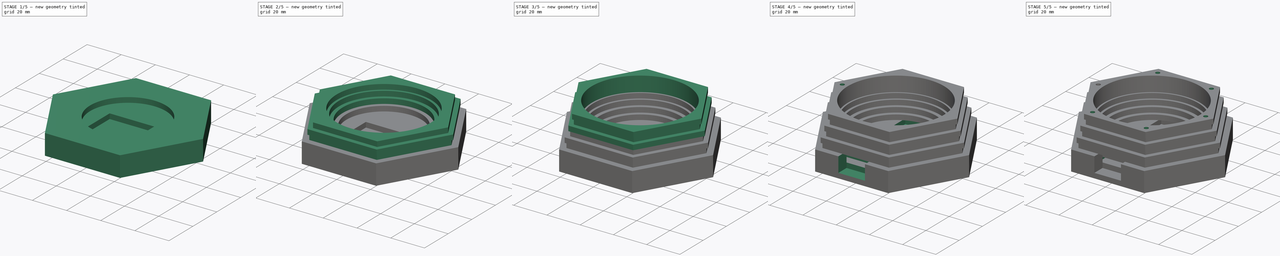
[diagram: build sequence overview — one tinted view per stage of 5, left to right]
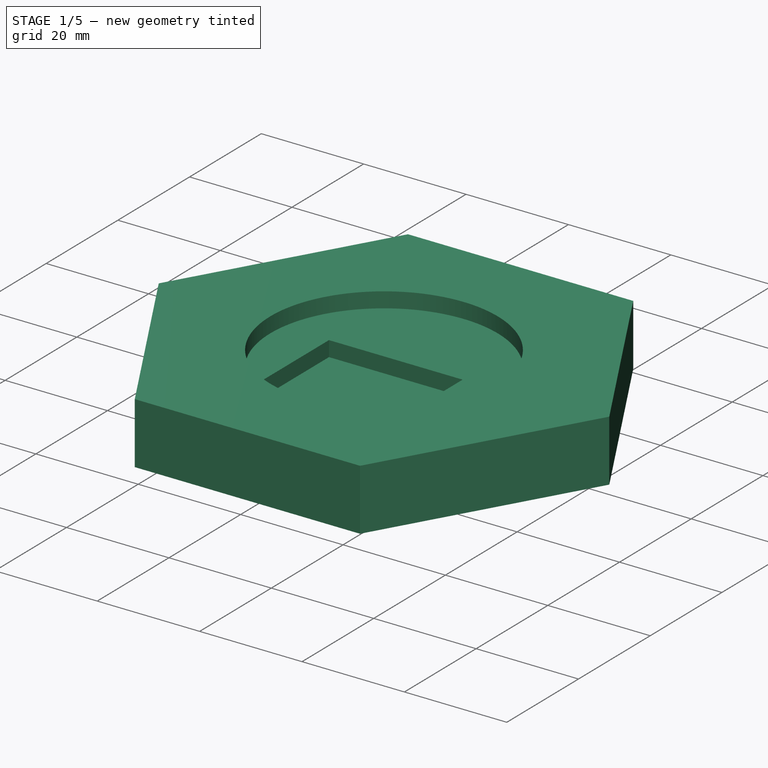
[diagram: stage 1 of 5 — iso view after this stage's code; geometry added in this stage tinted green]
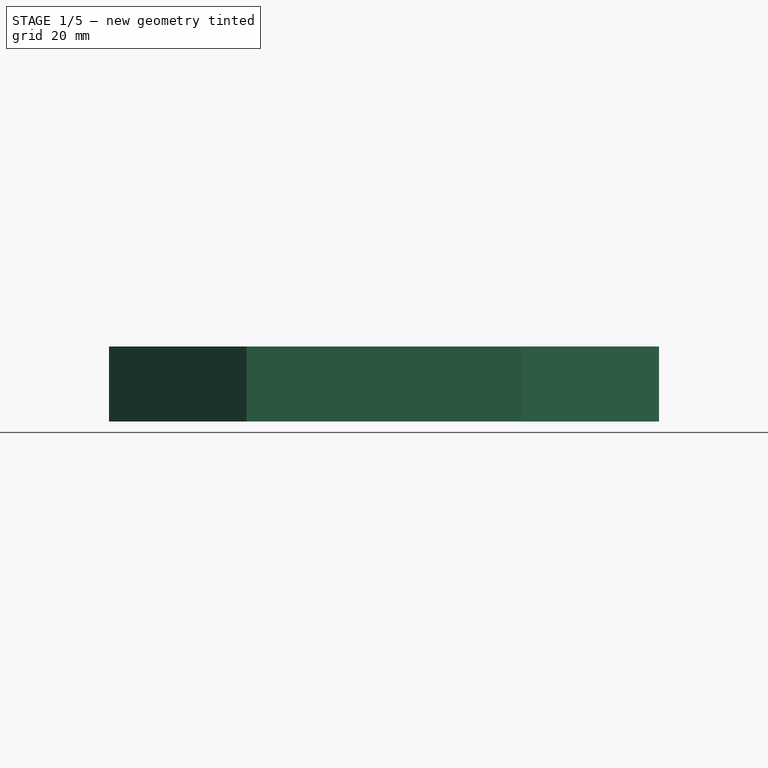
[diagram: stage 1 of 5 — front view after this stage's code; geometry added in this stage tinted green]
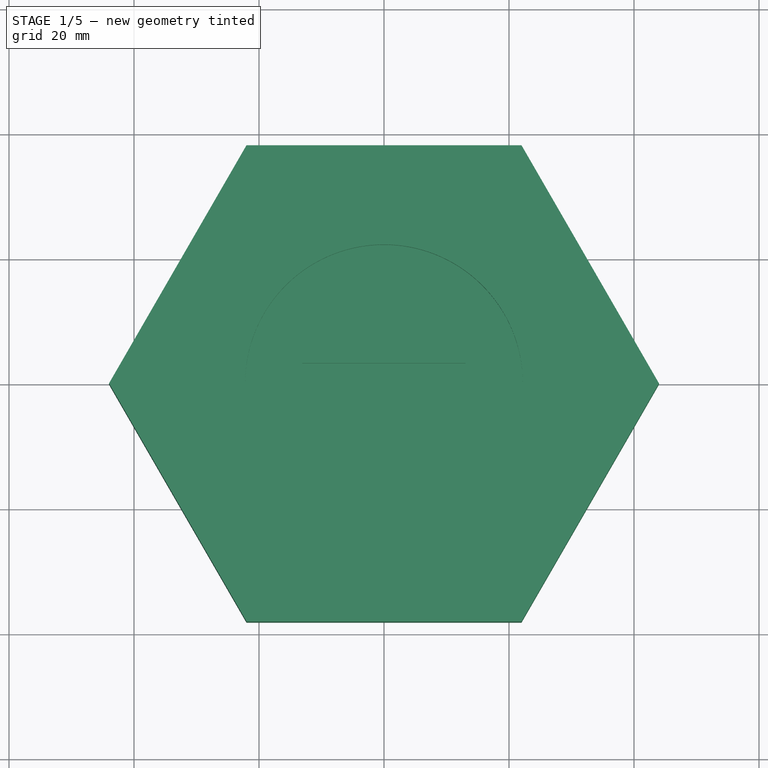
[diagram: stage 1 of 5 — top view after this stage's code; geometry added in this stage tinted green]
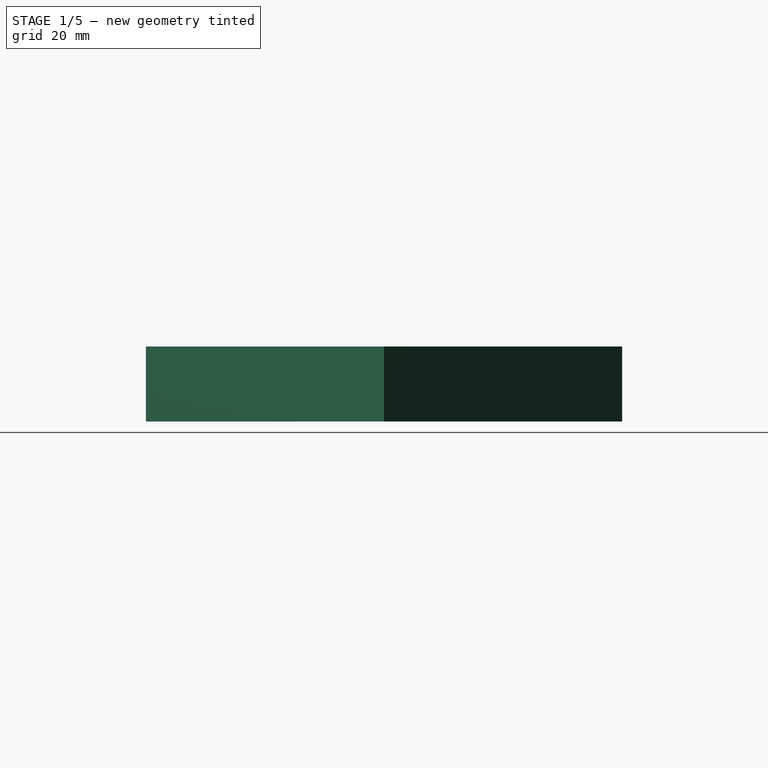
[diagram: stage 1 of 5 — right view after this stage's code; geometry added in this stage tinted green]
FCSTD DOCUMENT  (FreeCAD 0.18R16093 (Git))
Label: 16-Pixel-WiFi-Ring-Hexagon-30mm-tall-ESP8266-USB-Wire-Spot-Screw-Holes-wiring
License: All rights reserved
LicenseURL: http://en.wikipedia.org/wiki/All_rights_reserved
objects: Sketcher::SketchObject×15, PartDesign::Pad×8, PartDesign::Pocket×7, PartDesign::PolarPattern×1, PartDesign::Body×1, App::Part×1
note: 47 computed .brp shape members not serialized (recipe doc carries the construction recipe); baked Part::Feature solids carry a one-line shape summary decoded from their .brp

FEATURE [Sketcher::SketchObject] Sketch
  MapMode = 5
  Support = -> [XY_Plane001]
  sketch-geometry (7):
    g0: LineSegment StartX=44 StartY=0 StartZ=0 EndX=22 EndY=38.1051 EndZ=0
    g1: LineSegment StartX=22 StartY=38.1051 StartZ=0 EndX=-22 EndY=38.1051 EndZ=0
    g2: LineSegment StartX=-22 StartY=38.1051 StartZ=0 EndX=-44 EndY=-2.487e-13 EndZ=0
    g3: LineSegment StartX=-44 StartY=-2.487e-13 StartZ=0 EndX=-22 EndY=-38.1051 EndZ=0
    g4: LineSegment StartX=-22 StartY=-38.1051 StartZ=0 EndX=22 EndY=-38.1051 EndZ=0
    g5: LineSegment StartX=22 StartY=-38.1051 StartZ=0 EndX=44 EndY=0 EndZ=0
    g6: Circle [constr] CenterX=0 CenterY=0 CenterZ=0 NormalX=0 NormalY=0 NormalZ=1 AngleXU=0 Radius=44
  constraints (16):
    c: Coincident(g0,g1)
    c: Coincident(g1,g2)
    c: Coincident(g2,g3)
    c: Coincident(g3,g4)
    c: Coincident(g4,g5)
    c: Coincident(g5,g0)
    c: Equal(g0, g1-g5) x5
    c: PointOnObject(g0,g6)
    c: PointOnObject(g1,g6)
    c: PointOnObject(g2,g6)
    c: PointOnObject(g3,g6)
    c: PointOnObject(g4,g6)
    c: PointOnObject(g5,g6)
    c: Coincident(g6,g-1)
    c: Distance(g1) = 44
    c: PointOnObject(g0,g-1)
FEATURE [PartDesign::Pad] Pad
  Length = 9
  Length2 = 100
  Profile = -> Sketch
  Type = 0
FEATURE [Sketcher::SketchObject] Sketch001
  ExternalGeometry = -> [Pad]
  MapMode = 5
  Placement = pos=(0,0,9) rot=(0,0,1;0rad)
  Support = -> [Pad]
  sketch-geometry (5):
    g0: LineSegment StartX=-13.05 StartY=3.29488 StartZ=0 EndX=13.05 EndY=3.29488 EndZ=0
    g1: LineSegment StartX=13.05 StartY=3.29488 StartZ=0 EndX=13.05 EndY=-31.1051 EndZ=0
    g2: LineSegment StartX=13.05 StartY=-31.1051 StartZ=0 EndX=-13.05 EndY=-31.1051 EndZ=0
    g3: LineSegment StartX=-13.05 StartY=-31.1051 StartZ=0 EndX=-13.05 EndY=3.29488 EndZ=0
    g4: GeomPoint X=0 Y=3.29488 Z=0
  constraints (13):
    c: Coincident(g0,g1)
    c: Coincident(g1,g2)
    c: Coincident(g2,g3)
    c: Coincident(g3,g0)
    c: Horizontal(g0)
    c: Horizontal(g2)
    c: Vertical(g1)
    c: Vertical(g3)
    c: Distance(g1) = 34.4
    c: Distance(g2) = 26.1
    c: Symmetric(g0,g0,g4)
    c: PointOnObject(g4,g-2)
    c: Distance(g1,g-3) = 7
FEATURE [PartDesign::Pocket] Pocket
  BaseFeature = -> Pad
  Length = 3
  Length2 = 100
  Profile = -> Sketch001
  Type = 0
FEATURE [Sketcher::SketchObject] Sketch002
  ExternalGeometry = -> [Pocket]
  MapMode = 5
  Placement = pos=(0,0,9) rot=(0,0,1;0rad)
  Support = -> [Pocket]
  sketch-geometry (9):
    g0: LineSegment StartX=22 StartY=38.1051 StartZ=0 EndX=-22 EndY=38.1051 EndZ=0
    g1: LineSegment StartX=-22 StartY=38.1051 StartZ=0 EndX=-44 EndY=2.913e-13 EndZ=0
    g2: LineSegment StartX=-44 StartY=2.913e-13 StartZ=0 EndX=-22 EndY=-38.1051 EndZ=0
    g3: LineSegment StartX=-22 StartY=-38.1051 StartZ=0 EndX=22 EndY=-38.1051 EndZ=0
    g4: LineSegment StartX=22 StartY=-38.1051 StartZ=0 EndX=44 EndY=0 EndZ=0
    g5: LineSegment StartX=44 StartY=0 StartZ=0 EndX=22 EndY=38.1051 EndZ=0
    g6: Circle [constr] CenterX=-3.087e-13 CenterY=2.69e-14 CenterZ=0 NormalX=0 NormalY=0 NormalZ=1 AngleXU=0 Radius=44
    g7: Circle CenterX=0 CenterY=0 CenterZ=0 NormalX=0 NormalY=0 NormalZ=1 AngleXU=0 Radius=22.22
    g8: GeomPoint X=22.22 Y=0 Z=0
  constraints (19):
    c: Coincident(g0,g1)
    c: Coincident(g1,g2)
    c: Coincident(g2,g3)
    c: Coincident(g3,g4)
    c: Coincident(g4,g5)
    c: Coincident(g5,g0)
    c: Equal(g0, g1-g5) x5
    c: PointOnObject(g0,g6)
    c: PointOnObject(g1,g6)
    c: PointOnObject(g2,g6)
    c: PointOnObject(g3,g6)
    c: PointOnObject(g4,g6)
    c: PointOnObject(g5,g6)
    c: Coincident(g0,g-3)
    c: Coincident(g4,g-3)
    c: Coincident(g7,g-1)
    c: PointOnObject(g8,g7)
    c: PointOnObject(g8,g-1)
    c: Distance(g7,g8) = 22.22
FEATURE [PartDesign::Pad] Pad001
  BaseFeature = -> Pocket
  Length = 3
  Length2 = 100
  Profile = -> Sketch002
  Type = 0
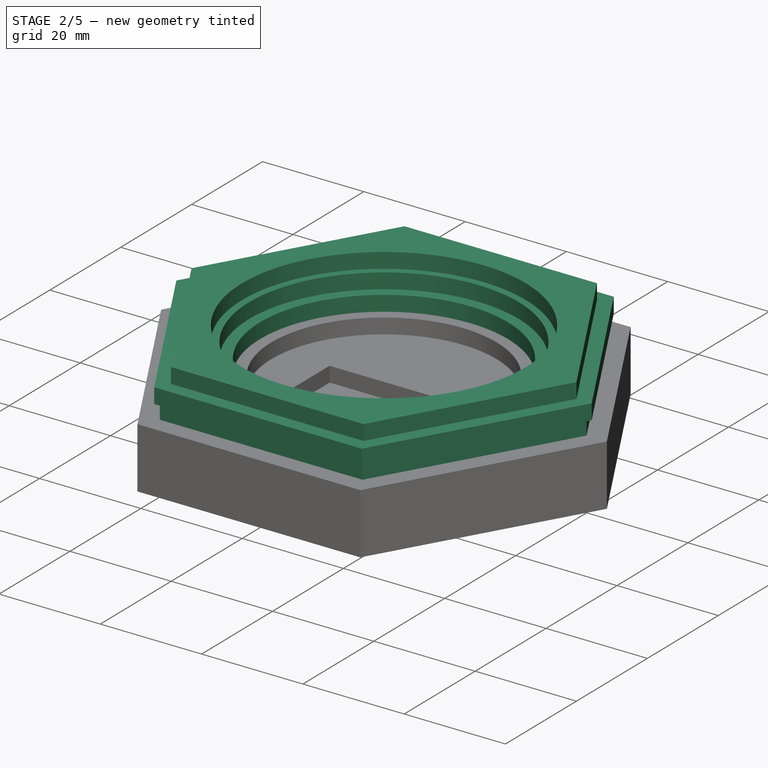
[diagram: stage 2 of 5 — iso view after this stage's code; geometry added in this stage tinted green]
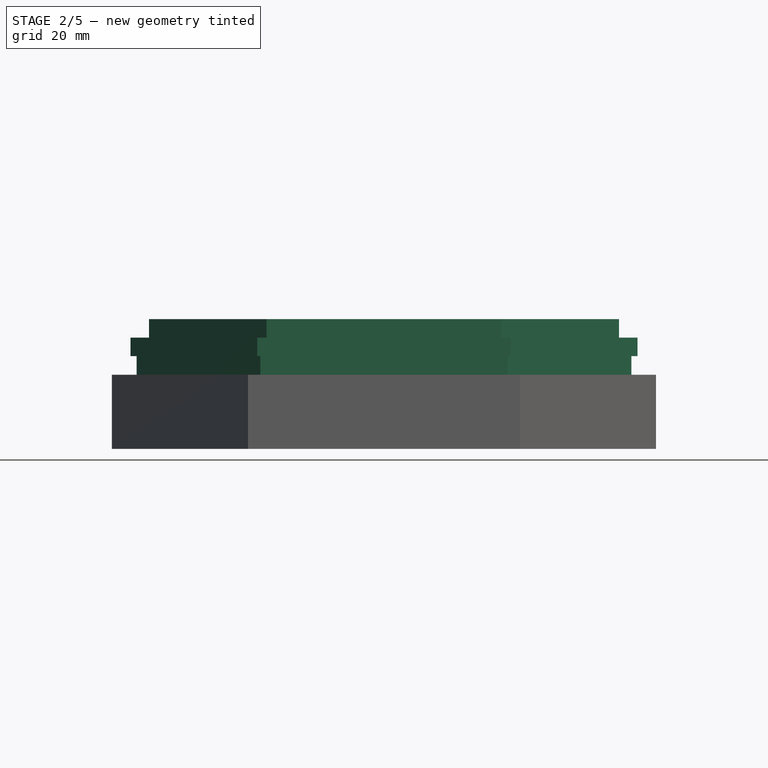
[diagram: stage 2 of 5 — front view after this stage's code; geometry added in this stage tinted green]
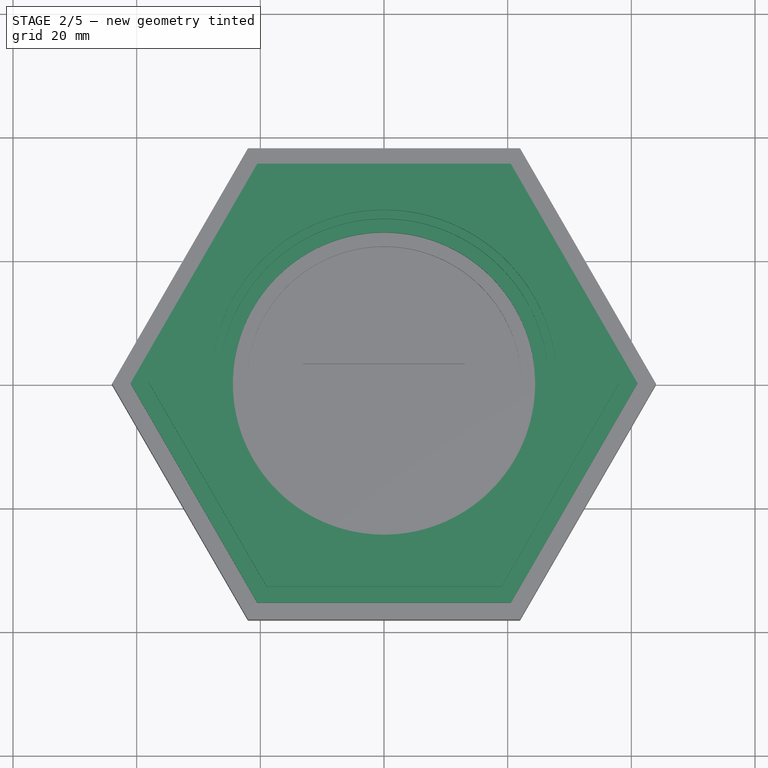
[diagram: stage 2 of 5 — top view after this stage's code; geometry added in this stage tinted green]
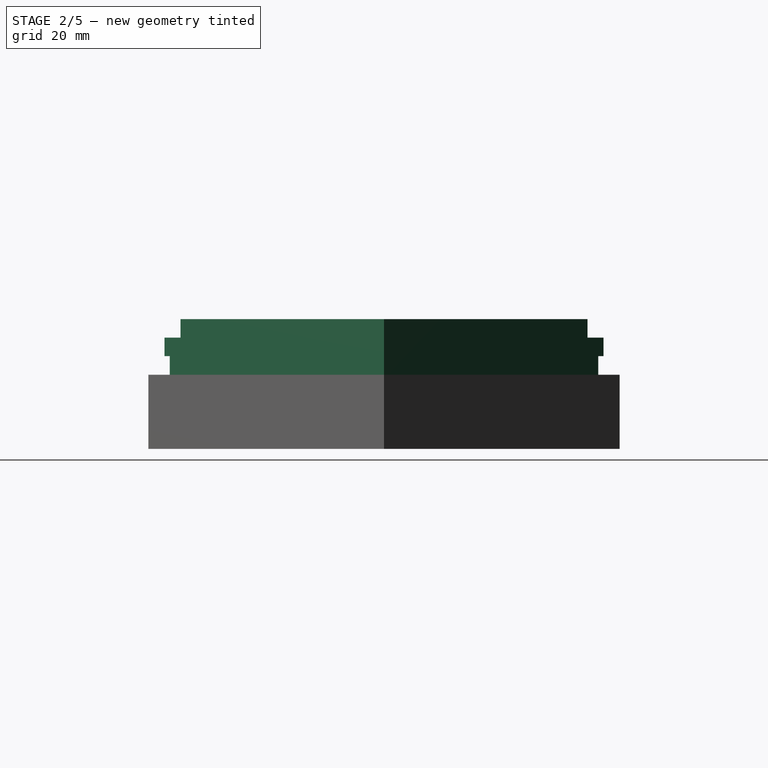
[diagram: stage 2 of 5 — right view after this stage's code; geometry added in this stage tinted green]
FEATURE [Sketcher::SketchObject] Sketch003
  ExternalGeometry = -> [Pad001]
  MapMode = 5
  Placement = pos=(0,0,12) rot=(0,0,1;0rad)
  Support = -> [Pad001]
  sketch-geometry (9):
    g0: LineSegment StartX=40 StartY=0 StartZ=0 EndX=20 EndY=34.641 EndZ=0
    g1: LineSegment StartX=20 StartY=34.641 StartZ=0 EndX=-20 EndY=34.641 EndZ=0
    g2: LineSegment StartX=-20 StartY=34.641 StartZ=0 EndX=-40 EndY=0 EndZ=0
    g3: LineSegment StartX=-40 StartY=0 StartZ=0 EndX=-20 EndY=-34.641 EndZ=0
    g4: LineSegment StartX=-20 StartY=-34.641 StartZ=0 EndX=20 EndY=-34.641 EndZ=0
    g5: LineSegment StartX=20 StartY=-34.641 StartZ=0 EndX=40 EndY=0 EndZ=0
    g6: Circle [constr] CenterX=0 CenterY=0 CenterZ=0 NormalX=0 NormalY=0 NormalZ=1 AngleXU=0 Radius=40
    g7: Circle CenterX=0 CenterY=0 CenterZ=0 NormalX=0 NormalY=0 NormalZ=1 AngleXU=0 Radius=24.44
    g8: GeomPoint X=24.44 Y=0 Z=0
  constraints (20):
    c: Coincident(g0,g1)
    c: Coincident(g1,g2)
    c: Coincident(g2,g3)
    c: Coincident(g3,g4)
    c: Coincident(g4,g5)
    c: Coincident(g5,g0)
    c: Equal(g0, g1-g5) x5
    c: PointOnObject(g0,g6)
    c: PointOnObject(g1,g6)
    c: PointOnObject(g2,g6)
    c: PointOnObject(g3,g6)
    c: PointOnObject(g4,g6)
    c: PointOnObject(g5,g6)
    c: Distance(g0) = 40
    c: Coincident(g6,g-1)
    c: PointOnObject(g0,g-1)
    c: Coincident(g7,g-1)
    c: PointOnObject(g8,g7)
    c: PointOnObject(g8,g-1)
    c: Distance(g7,g8) = 24.44
FEATURE [PartDesign::Pad] Pad002
  BaseFeature = -> Pad001
  Length = 3
  Length2 = 100
  Profile = -> Sketch003
  Type = 0
FEATURE [Sketcher::SketchObject] Sketch004
  MapMode = 5
  Placement = pos=(0,0,15) rot=(0,0,1;0rad)
  Support = -> [Pad002]
  sketch-geometry (9):
    g0: LineSegment StartX=41 StartY=0 StartZ=0 EndX=20.5 EndY=35.507 EndZ=0
    g1: LineSegment StartX=20.5 StartY=35.507 StartZ=0 EndX=-20.5 EndY=35.507 EndZ=0
    g2: LineSegment StartX=-20.5 StartY=35.507 StartZ=0 EndX=-41 EndY=0 EndZ=0
    g3: LineSegment StartX=-41 StartY=0 StartZ=0 EndX=-20.5 EndY=-35.507 EndZ=0
    g4: LineSegment StartX=-20.5 StartY=-35.507 StartZ=0 EndX=20.5 EndY=-35.507 EndZ=0
    g5: LineSegment StartX=20.5 StartY=-35.507 StartZ=0 EndX=41 EndY=0 EndZ=0
    g6: Circle [constr] CenterX=0 CenterY=0 CenterZ=0 NormalX=0 NormalY=0 NormalZ=1 AngleXU=0 Radius=41
    g7: Circle CenterX=0 CenterY=0 CenterZ=0 NormalX=0 NormalY=0 NormalZ=1 AngleXU=0 Radius=26.6
    g8: GeomPoint X=26.6 Y=0 Z=0
  constraints (20):
    c: Coincident(g0,g1)
    c: Coincident(g1,g2)
    c: Coincident(g2,g3)
    c: Coincident(g3,g4)
    c: Coincident(g4,g5)
    c: Coincident(g5,g0)
    c: Equal(g0, g1-g5) x5
    c: PointOnObject(g0,g6)
    c: PointOnObject(g1,g6)
    c: PointOnObject(g2,g6)
    c: PointOnObject(g3,g6)
    c: PointOnObject(g4,g6)
    c: PointOnObject(g5,g6)
    c: Coincident(g6,g-1)
    c: PointOnObject(g0,g-1)
    c: Distance(g0) = 41
    c: Coincident(g7,g-1)
    c: PointOnObject(g8,g7)
    c: PointOnObject(g8,g-1)
    c: Distance(g8,g7) = 26.6
FEATURE [PartDesign::Pad] Pad003
  BaseFeature = -> Pad002
  Length = 3
  Length2 = 100
  Profile = -> Sketch004
  Type = 0
FEATURE [Sketcher::SketchObject] Sketch005
  MapMode = 5
  Placement = pos=(0,0,18) rot=(0,0,1;0rad)
  Support = -> [Pad003]
  sketch-geometry (9):
    g0: LineSegment StartX=19 StartY=32.909 StartZ=0 EndX=-19 EndY=32.909 EndZ=0
    g1: LineSegment StartX=-19 StartY=32.909 StartZ=0 EndX=-38 EndY=0 EndZ=0
    g2: LineSegment StartX=-38 StartY=0 StartZ=0 EndX=-19 EndY=-32.909 EndZ=0
    g3: LineSegment StartX=-19 StartY=-32.909 StartZ=0 EndX=19 EndY=-32.909 EndZ=0
    g4: LineSegment StartX=19 StartY=-32.909 StartZ=0 EndX=38 EndY=0 EndZ=0
    g5: LineSegment StartX=38 StartY=0 StartZ=0 EndX=19 EndY=32.909 EndZ=0
    g6: Circle [constr] CenterX=0 CenterY=0 CenterZ=0 NormalX=0 NormalY=0 NormalZ=1 AngleXU=0 Radius=38
    g7: Circle CenterX=0 CenterY=0 CenterZ=0 NormalX=0 NormalY=0 NormalZ=1 AngleXU=0 Radius=28
    g8: GeomPoint X=28 Y=0 Z=0
  constraints (20):
    c: Coincident(g0,g1)
    c: Coincident(g1,g2)
    c: Coincident(g2,g3)
    c: Coincident(g3,g4)
    c: Coincident(g4,g5)
    c: Coincident(g5,g0)
    c: Equal(g0, g1-g5) x5
    c: PointOnObject(g0,g6)
    c: PointOnObject(g1,g6)
    c: PointOnObject(g2,g6)
    c: PointOnObject(g3,g6)
    c: PointOnObject(g4,g6)
    c: PointOnObject(g5,g6)
    c: Coincident(g6,g-1)
    c: PointOnObject(g4,g-1)
    c: Distance(g5) = 38
    c: PointOnObject(g8,g7)
    c: Coincident(g7,g-1)
    c: PointOnObject(g8,g-1)
    c: Distance(g8,g7) = 28
FEATURE [PartDesign::Pad] Pad004
  BaseFeature = -> Pad003
  Length = 3
  Length2 = 100
  Profile = -> Sketch005
  Type = 0
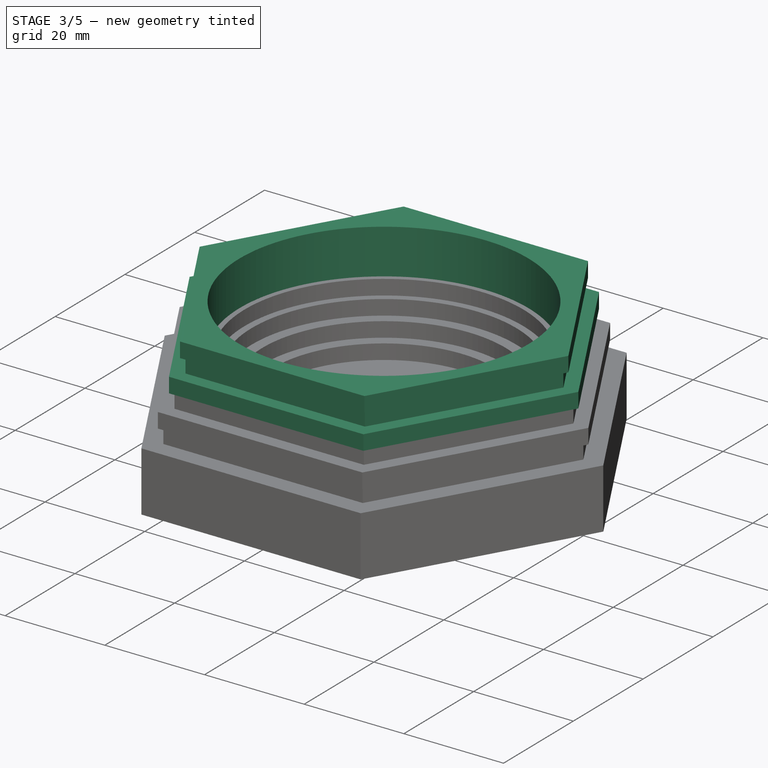
[diagram: stage 3 of 5 — iso view after this stage's code; geometry added in this stage tinted green]
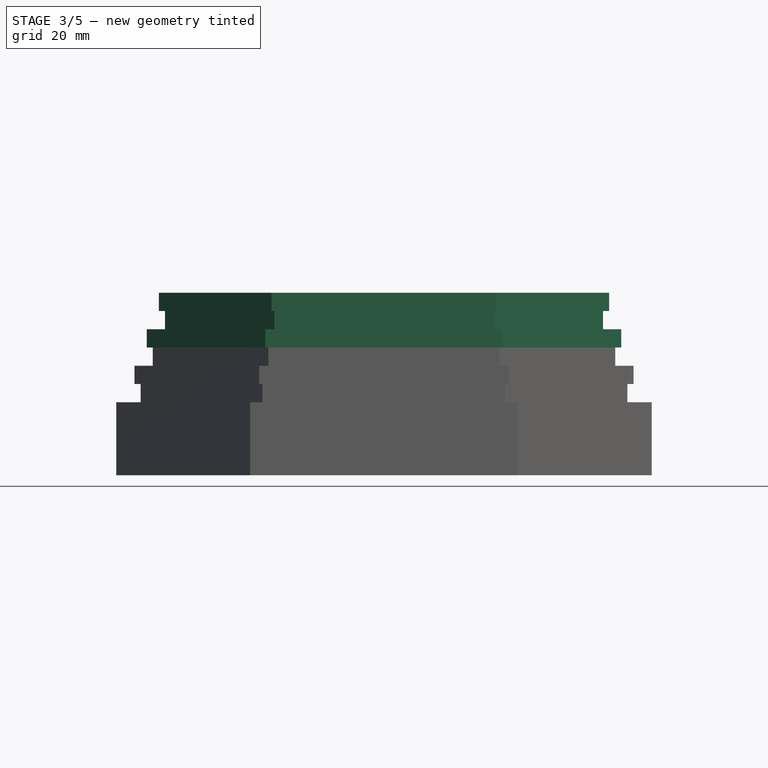
[diagram: stage 3 of 5 — front view after this stage's code; geometry added in this stage tinted green]
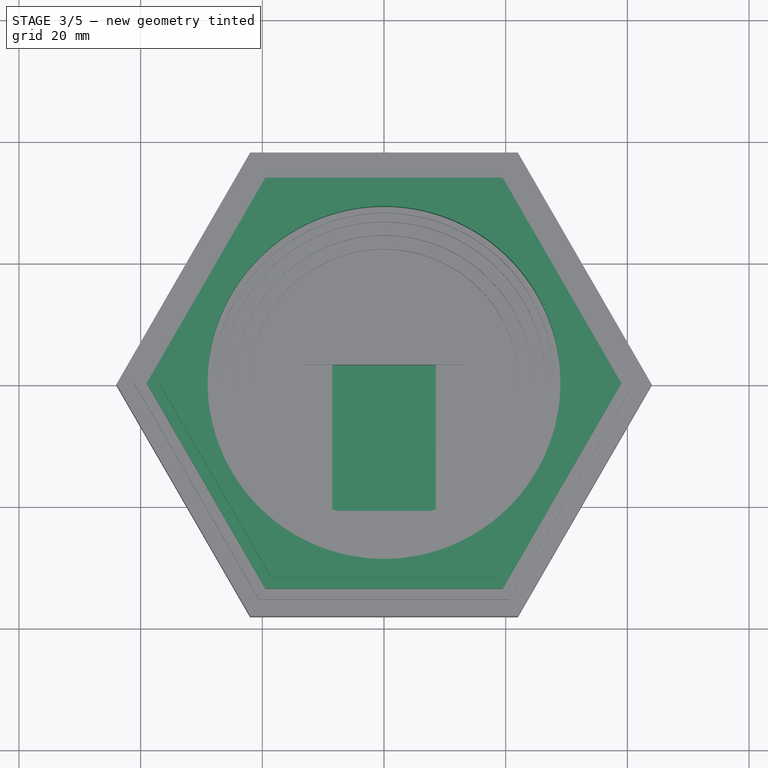
[diagram: stage 3 of 5 — top view after this stage's code; geometry added in this stage tinted green]
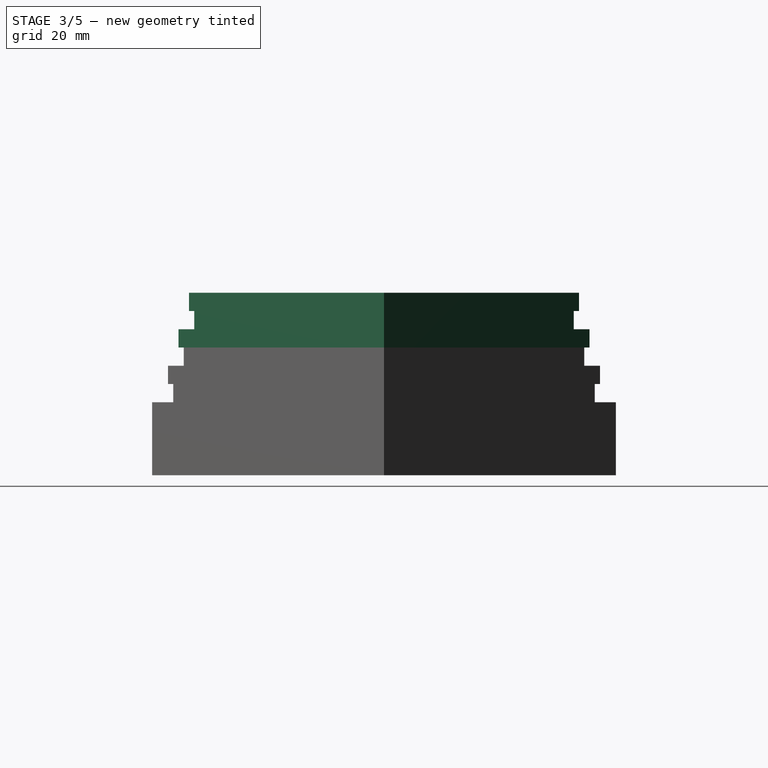
[diagram: stage 3 of 5 — right view after this stage's code; geometry added in this stage tinted green]
FEATURE [Sketcher::SketchObject] Sketch006
  MapMode = 5
  Placement = pos=(0,0,21) rot=(0,0,1;0rad)
  Support = -> [Pad004]
  sketch-geometry (9):
    g0: LineSegment StartX=39 StartY=0 StartZ=0 EndX=19.5 EndY=33.775 EndZ=0
    g1: LineSegment StartX=19.5 StartY=33.775 StartZ=0 EndX=-19.5 EndY=33.775 EndZ=0
    g2: LineSegment StartX=-19.5 StartY=33.775 StartZ=0 EndX=-39 EndY=2.84e-14 EndZ=0
    g3: LineSegment StartX=-39 StartY=2.84e-14 StartZ=0 EndX=-19.5 EndY=-33.775 EndZ=0
    g4: LineSegment StartX=-19.5 StartY=-33.775 StartZ=0 EndX=19.5 EndY=-33.775 EndZ=0
    g5: LineSegment StartX=19.5 StartY=-33.775 StartZ=0 EndX=39 EndY=0 EndZ=0
    g6: Circle [constr] CenterX=0 CenterY=0 CenterZ=0 NormalX=0 NormalY=0 NormalZ=1 AngleXU=0 Radius=39
    g7: Circle CenterX=0 CenterY=0 CenterZ=0 NormalX=0 NormalY=0 NormalZ=1 AngleXU=0 Radius=29
    g8: GeomPoint X=29 Y=0 Z=0
  constraints (20):
    c: Coincident(g0,g1)
    c: Coincident(g1,g2)
    c: Coincident(g2,g3)
    c: Coincident(g3,g4)
    c: Coincident(g4,g5)
    c: Coincident(g5,g0)
    c: Equal(g0, g1-g5) x5
    c: PointOnObject(g0,g6)
    c: PointOnObject(g1,g6)
    c: PointOnObject(g2,g6)
    c: PointOnObject(g3,g6)
    c: PointOnObject(g4,g6)
    c: PointOnObject(g5,g6)
    c: Coincident(g6,g-1)
    c: PointOnObject(g0,g-1)
    c: Distance(g0) = 39
    c: Coincident(g7,g-1)
    c: PointOnObject(g8,g7)
    c: PointOnObject(g8,g-1)
    c: Distance(g7,g8) = 29
FEATURE [PartDesign::Pad] Pad005
  BaseFeature = -> Pad004
  Length = 3
  Length2 = 100
  Profile = -> Sketch006
  Type = 0
FEATURE [Sketcher::SketchObject] Sketch007
  MapMode = 5
  Placement = pos=(0,0,24) rot=(0,0,1;0rad)
  Support = -> [Pad005]
  sketch-geometry (9):
    g0: LineSegment StartX=36 StartY=0 StartZ=0 EndX=18 EndY=31.1769 EndZ=0
    g1: LineSegment StartX=18 StartY=31.1769 StartZ=0 EndX=-18 EndY=31.1769 EndZ=0
    g2: LineSegment StartX=-18 StartY=31.1769 StartZ=0 EndX=-36 EndY=-1.42e-14 EndZ=0
    g3: LineSegment StartX=-36 StartY=-1.42e-14 StartZ=0 EndX=-18 EndY=-31.1769 EndZ=0
    g4: LineSegment StartX=-18 StartY=-31.1769 StartZ=0 EndX=18 EndY=-31.1769 EndZ=0
    g5: LineSegment StartX=18 StartY=-31.1769 StartZ=0 EndX=36 EndY=0 EndZ=0
    g6: Circle [constr] CenterX=0 CenterY=0 CenterZ=0 NormalX=0 NormalY=0 NormalZ=1 AngleXU=0 Radius=36
    g7: Circle CenterX=0 CenterY=0 CenterZ=0 NormalX=0 NormalY=0 NormalZ=1 AngleXU=0 Radius=29
    g8: GeomPoint X=29 Y=0 Z=0
  constraints (20):
    c: Coincident(g0,g1)
    c: Coincident(g1,g2)
    c: Coincident(g2,g3)
    c: Coincident(g3,g4)
    c: Coincident(g4,g5)
    c: Coincident(g5,g0)
    c: Equal(g0, g1-g5) x5
    c: PointOnObject(g0,g6)
    c: PointOnObject(g1,g6)
    c: PointOnObject(g2,g6)
    c: PointOnObject(g3,g6)
    c: PointOnObject(g4,g6)
    c: PointOnObject(g5,g6)
    c: Coincident(g6,g-1)
    c: PointOnObject(g0,g-1)
    c: Distance(g0) = 36
    c: Coincident(g7,g-1)
    c: PointOnObject(g8,g7)
    c: PointOnObject(g8,g-1)
    c: Distance(g7,g8) = 29
FEATURE [PartDesign::Pad] Pad006
  BaseFeature = -> Pad005
  Length = 3
  Length2 = 100
  Profile = -> Sketch007
  Type = 0
FEATURE [Sketcher::SketchObject] Sketch008
  MapMode = 5
  Placement = pos=(0,0,27) rot=(0,0,1;0rad)
  Support = -> [Pad006]
  sketch-geometry (9):
    g0: Circle CenterX=0 CenterY=0 CenterZ=0 NormalX=0 NormalY=0 NormalZ=1 AngleXU=0 Radius=29
    g1: GeomPoint X=29 Y=0 Z=0
    g2: LineSegment StartX=37 StartY=0 StartZ=0 EndX=18.5 EndY=32.0429 EndZ=0
    g3: LineSegment StartX=18.5 StartY=32.0429 StartZ=0 EndX=-18.5 EndY=32.0429 EndZ=0
    g4: LineSegment StartX=-18.5 StartY=32.0429 StartZ=0 EndX=-37 EndY=1.42e-14 EndZ=0
    g5: LineSegment StartX=-37 StartY=1.42e-14 StartZ=0 EndX=-18.5 EndY=-32.0429 EndZ=0
    g6: LineSegment StartX=-18.5 StartY=-32.0429 StartZ=0 EndX=18.5 EndY=-32.0429 EndZ=0
    g7: LineSegment StartX=18.5 StartY=-32.0429 StartZ=0 EndX=37 EndY=0 EndZ=0
    g8: Circle [constr] CenterX=0 CenterY=0 CenterZ=0 NormalX=0 NormalY=0 NormalZ=1 AngleXU=0 Radius=37
  constraints (20):
    c: Coincident(g0,g-1)
    c: PointOnObject(g1,g-1)
    c: PointOnObject(g1,g0)
    c: Distance(g0,g1) = 29
    c: Coincident(g2,g3)
    c: Coincident(g3,g4)
    c: Coincident(g4,g5)
    c: Coincident(g5,g6)
    c: Coincident(g6,g7)
    c: Coincident(g7,g2)
    c: Equal(g2, g3-g7) x5
    c: PointOnObject(g2,g8)
    c: PointOnObject(g3,g8)
    c: PointOnObject(g4,g8)
    c: PointOnObject(g5,g8)
    c: PointOnObject(g6,g8)
    c: PointOnObject(g7,g8)
    c: Coincident(g8,g0)
    c: PointOnObject(g2,g-1)
    c: Distance(g2) = 37
FEATURE [PartDesign::Pad] Pad007
  BaseFeature = -> Pad006
  Length = 3
  Length2 = 100
  Profile = -> Sketch008
  Type = 0
FEATURE [Sketcher::SketchObject] Sketch009
  ExternalGeometry = -> [Pad007]
  MapMode = 5
  Placement = pos=(0,0,6) rot=(0,0,1;0rad)
  Support = -> [Pad007]
  sketch-geometry (5):
    g0: LineSegment StartX=-8.5 StartY=3.29488 StartZ=0 EndX=8.5 EndY=3.29488 EndZ=0
    g1: LineSegment StartX=8.5 StartY=3.29488 StartZ=0 EndX=8.5 EndY=-20.7051 EndZ=0
    g2: LineSegment StartX=8.5 StartY=-20.7051 StartZ=0 EndX=-8.5 EndY=-20.7051 EndZ=0
    g3: LineSegment StartX=-8.5 StartY=-20.7051 StartZ=0 EndX=-8.5 EndY=3.29488 EndZ=0
    g4: GeomPoint X=0 Y=3.29488 Z=0
  constraints (13):
    c: Coincident(g0,g1)
    c: Coincident(g1,g2)
    c: Coincident(g2,g3)
    c: Coincident(g3,g0)
    c: Horizontal(g0)
    c: Horizontal(g2)
    c: Vertical(g1)
    c: Vertical(g3)
    c: Distance(g0) = 17
    c: Distance(g1) = 24
    c: Symmetric(g0,g0,g4)
    c: PointOnObject(g4,g-2)
    c: PointOnObject(g4,g-3)
FEATURE [PartDesign::Pocket] Pocket001
  BaseFeature = -> Pad007
  Length = 3
  Length2 = 100
  Profile = -> Sketch009
  Type = 0
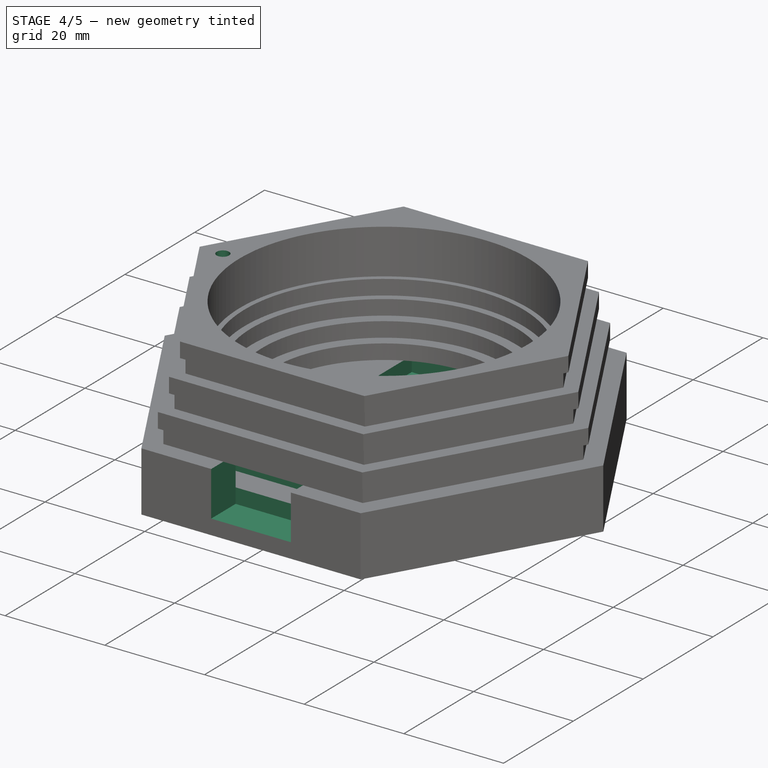
[diagram: stage 4 of 5 — iso view after this stage's code; geometry added in this stage tinted green]
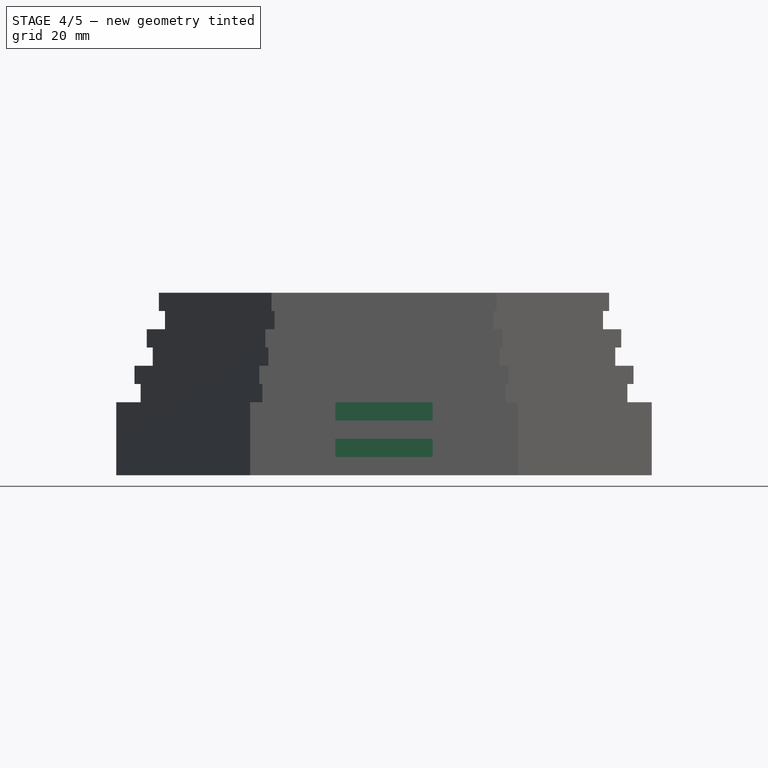
[diagram: stage 4 of 5 — front view after this stage's code; geometry added in this stage tinted green]
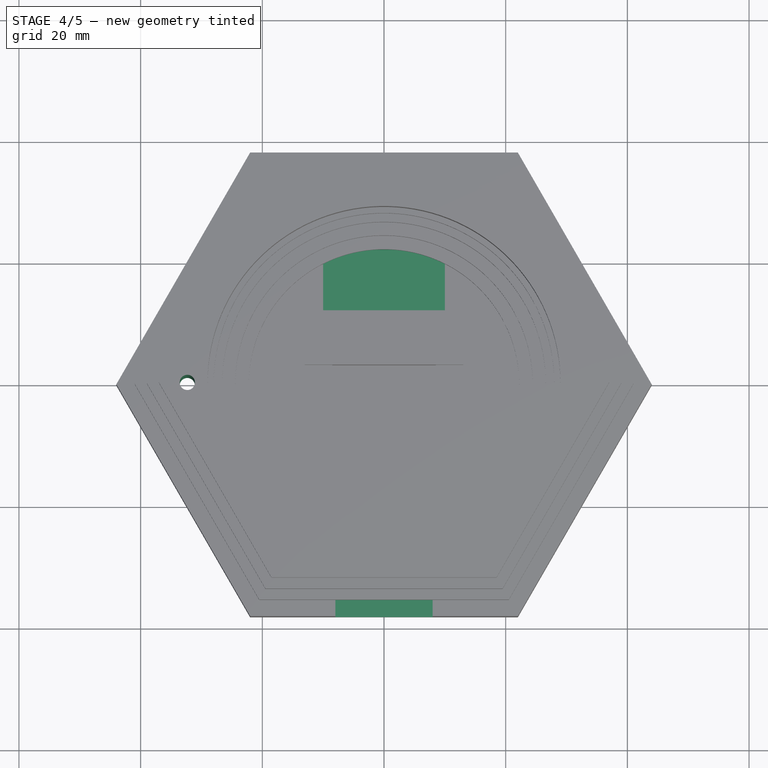
[diagram: stage 4 of 5 — top view after this stage's code; geometry added in this stage tinted green]
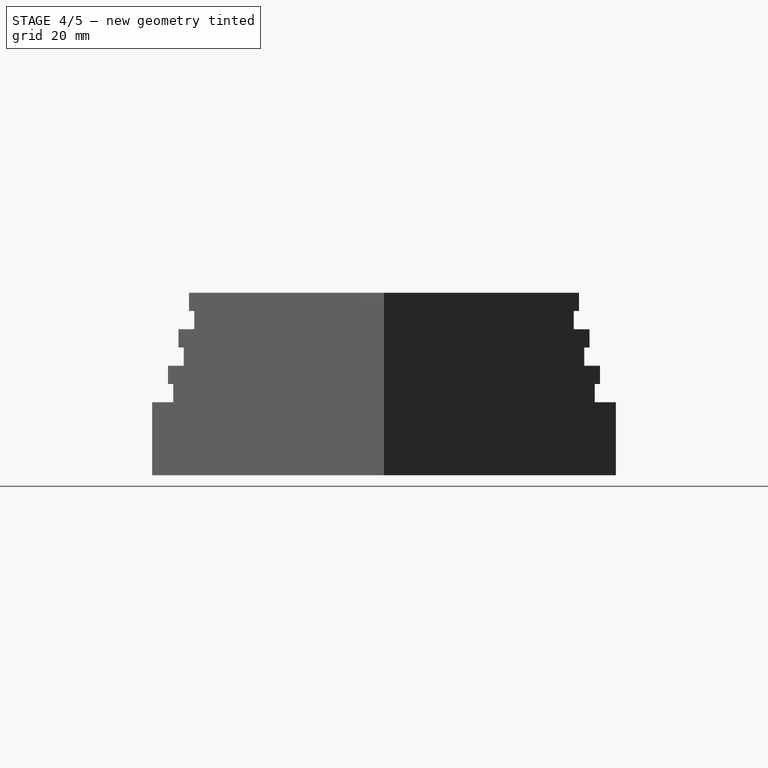
[diagram: stage 4 of 5 — right view after this stage's code; geometry added in this stage tinted green]
FEATURE [Sketcher::SketchObject] Sketch010
  ExternalGeometry = -> [Pocket001]
  MapMode = 5
  Placement = pos=(-3.754e-13,-38.1051,0) rot=(1,0,0;1.5708rad)
  Support = -> [Pocket001]
  sketch-geometry (5):
    g0: LineSegment StartX=-8 StartY=12 StartZ=0 EndX=8 EndY=12 EndZ=0
    g1: LineSegment StartX=8 StartY=12 StartZ=0 EndX=8 EndY=3 EndZ=0
    g2: LineSegment StartX=8 StartY=3 StartZ=0 EndX=-8 EndY=3 EndZ=0
    g3: LineSegment StartX=-8 StartY=3 StartZ=0 EndX=-8 EndY=12 EndZ=0
    g4: GeomPoint X=0 Y=12 Z=0
  constraints (13):
    c: Coincident(g0,g1)
    c: Coincident(g1,g2)
    c: Coincident(g2,g3)
    c: Coincident(g3,g0)
    c: Horizontal(g0)
    c: Horizontal(g2)
    c: Vertical(g1)
    c: Vertical(g3)
    c: Distance(g0) = 16
    c: Distance(g1) = 9
    c: Symmetric(g0,g0,g4)
    c: PointOnObject(g4,g-2)
    c: PointOnObject(g4,g-3)
FEATURE [PartDesign::Pocket] Pocket002
  BaseFeature = -> Pocket001
  Length = 7
  Length2 = 100
  Profile = -> Sketch010
  Type = 0
FEATURE [Sketcher::SketchObject] Sketch011
  ExternalGeometry = -> [Pocket002]
  MapMode = 5
  Placement = pos=(0,0,9) rot=(0,0,1;0rad)
  Support = -> [Pocket002]
  sketch-geometry (5):
    g0: LineSegment StartX=-10 StartY=22.22 StartZ=0 EndX=10 EndY=22.22 EndZ=0
    g1: LineSegment StartX=10 StartY=22.22 StartZ=0 EndX=10 EndY=12.22 EndZ=0
    g2: LineSegment StartX=10 StartY=12.22 StartZ=0 EndX=-10 EndY=12.22 EndZ=0
    g3: LineSegment StartX=-10 StartY=12.22 StartZ=0 EndX=-10 EndY=22.22 EndZ=0
    g4: GeomPoint X=0 Y=22.22 Z=0
  constraints (13):
    c: Coincident(g0,g1)
    c: Coincident(g1,g2)
    c: Coincident(g2,g3)
    c: Coincident(g3,g0)
    c: Horizontal(g0)
    c: Horizontal(g2)
    c: Vertical(g1)
    c: Vertical(g3)
    c: Distance(g0) = 20
    c: Distance(g1) = 10
    c: Symmetric(g0,g0,g4)
    c: PointOnObject(g4,g-2)
    c: PointOnObject(g4,g-3)
FEATURE [PartDesign::Pocket] Pocket003
  BaseFeature = -> Pocket002
  Length = 3
  Length2 = 100
  Profile = -> Sketch011
  Type = 0
FEATURE [Sketcher::SketchObject] Sketch012
  ExternalGeometry = -> [Pocket003]
  MapMode = 5
  Placement = pos=(0,0,30) rot=(0,0,1;0rad)
  Support = -> [Pocket003]
  sketch-geometry (3):
    g0: Circle CenterX=-32.33 CenterY=0 CenterZ=0 NormalX=0 NormalY=0 NormalZ=1 AngleXU=0 Radius=1.25
    g1: GeomPoint X=-31.08 Y=0 Z=0
    g2: GeomPoint X=-29 Y=0 Z=0
  constraints (7):
    c: PointOnObject(g0,g-1)
    c: PointOnObject(g1,g-1)
    c: Distance(g0,g1) = 1.25
    c: Distance(g0,g2) = 3.33
    c: PointOnObject(g2,g-3)
    c: PointOnObject(g2,g-1)
    c: PointOnObject(g1,g0)
FEATURE [PartDesign::Pocket] Pocket004
  BaseFeature = -> Pocket003
  Length = 5
  Length2 = 100
  Profile = -> Sketch012
  Type = 1
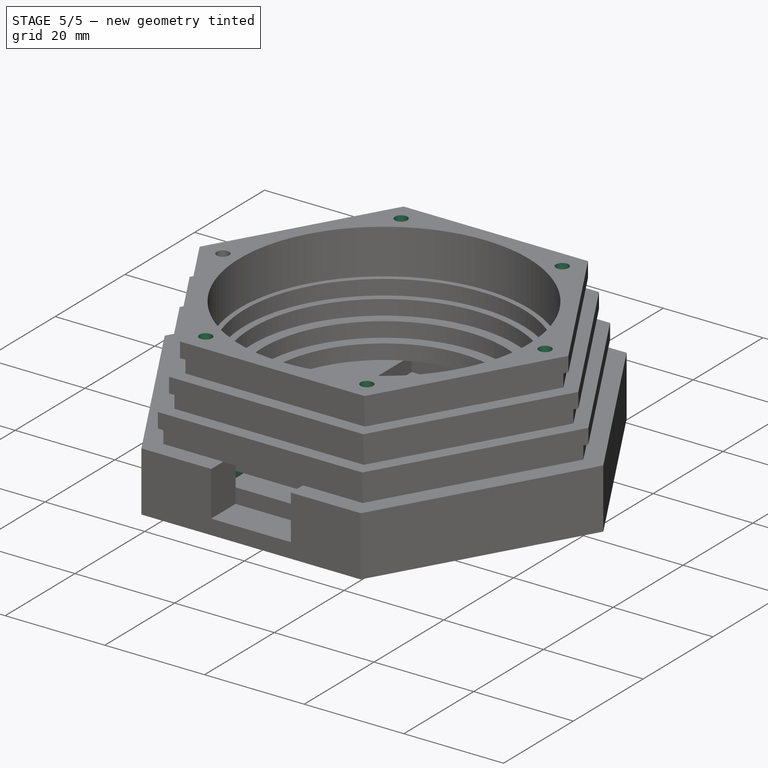
[diagram: stage 5 of 5 — iso view after this stage's code; geometry added in this stage tinted green]
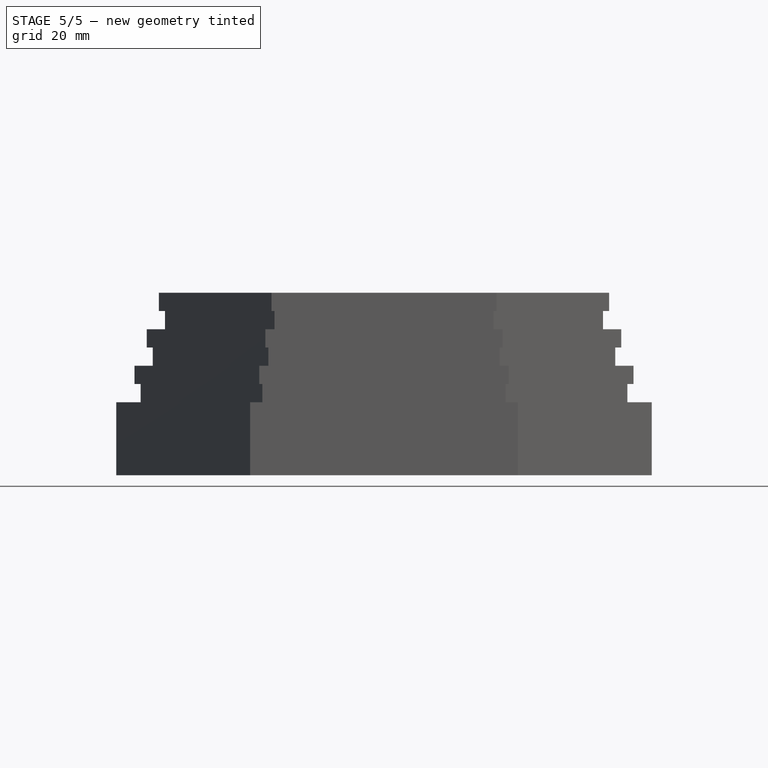
[diagram: stage 5 of 5 — front view after this stage's code; geometry added in this stage tinted green]
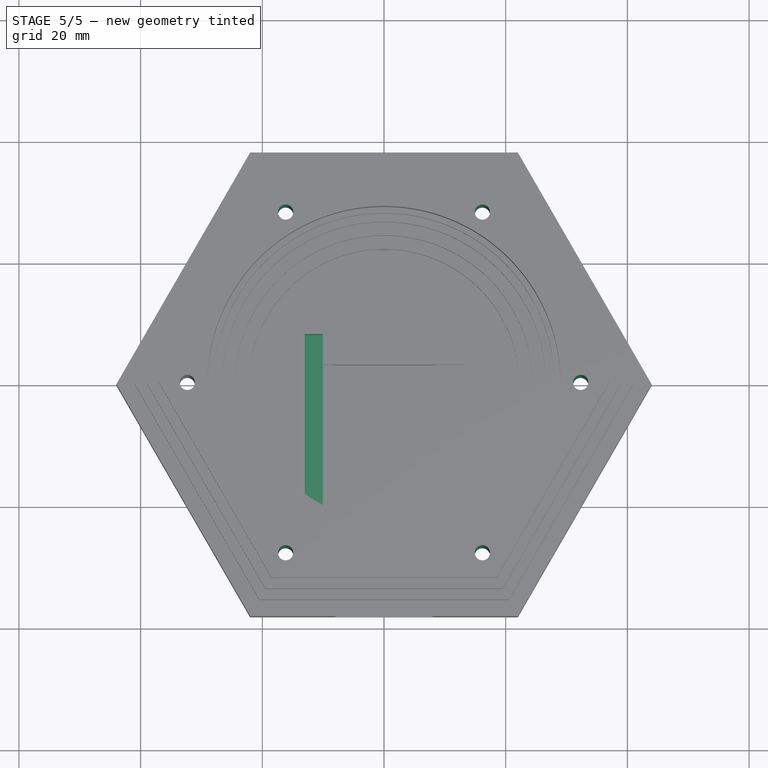
[diagram: stage 5 of 5 — top view after this stage's code; geometry added in this stage tinted green]
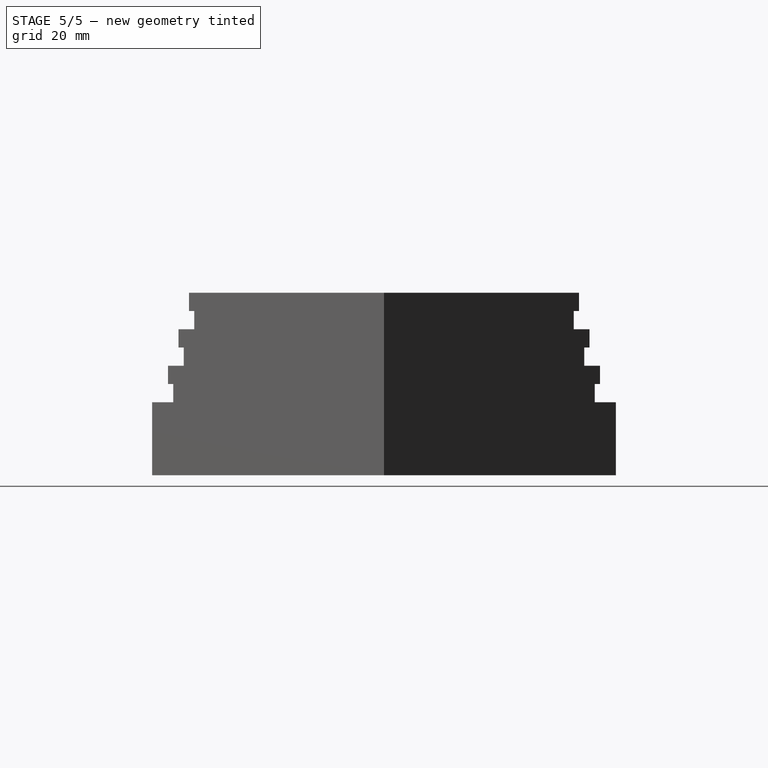
[diagram: stage 5 of 5 — right view after this stage's code; geometry added in this stage tinted green]
FEATURE [PartDesign::PolarPattern] PolarPattern
  Angle = 360
  Axis = -> Sketch012 [N_Axis]
  BaseFeature = -> Pocket004
  Occurrences = 6
  Originals = -> [Pocket004]
FEATURE [Sketcher::SketchObject] Sketch013
  ExternalGeometry = -> [PolarPattern]
  MapMode = 5
  Placement = pos=(0,0,6) rot=(0,0,1;0rad)
  Support = -> [PolarPattern]
  sketch-geometry (4):
    g0: LineSegment StartX=-10.05 StartY=-31.1051 StartZ=0 EndX=-13.05 EndY=-31.1051 EndZ=0
    g1: LineSegment StartX=-13.05 StartY=-31.1051 StartZ=0 EndX=-13.05 EndY=6.89488 EndZ=0
    g2: LineSegment StartX=-13.05 StartY=6.89488 StartZ=0 EndX=-10.05 EndY=6.89488 EndZ=0
    g3: LineSegment StartX=-10.05 StartY=6.89488 StartZ=0 EndX=-10.05 EndY=-31.1051 EndZ=0
  constraints (11):
    c: Coincident(g0,g1)
    c: Coincident(g1,g2)
    c: Coincident(g2,g3)
    c: Coincident(g3,g0)
    c: Horizontal(g0)
    c: Horizontal(g2)
    c: Vertical(g1)
    c: Vertical(g3)
    c: Distance(g2) = 3
    c: Distance(g3) = 38
    c: Coincident(g0,g-3)
FEATURE [PartDesign::Pocket] Pocket005
  BaseFeature = -> PolarPattern
  Length = 3
  Length2 = 100
  Profile = -> Sketch013
  Type = 0
FEATURE [Sketcher::SketchObject] Sketch014
  ExternalGeometry = -> [Pocket005]
  MapMode = 5
  Placement = pos=(0,0,9) rot=(0,0,1;0rad)
  Support = -> [Pocket005]
  sketch-geometry (4):
    g0: LineSegment StartX=-13.05 StartY=8.29488 StartZ=0 EndX=-10.05 EndY=8.29488 EndZ=0
    g1: LineSegment StartX=-10.05 StartY=8.29488 StartZ=0 EndX=-10.05 EndY=3.29488 EndZ=0
    g2: LineSegment StartX=-10.05 StartY=3.29488 StartZ=0 EndX=-13.05 EndY=3.29488 EndZ=0
    g3: LineSegment StartX=-13.05 StartY=3.29488 StartZ=0 EndX=-13.05 EndY=8.29488 EndZ=0
  constraints (11):
    c: Coincident(g0,g1)
    c: Coincident(g1,g2)
    c: Coincident(g2,g3)
    c: Coincident(g3,g0)
    c: Horizontal(g0)
    c: Horizontal(g2)
    c: Vertical(g1)
    c: Vertical(g3)
    c: Coincident(g2,g-3)
    c: Distance(g0) = 3
    c: Distance(g1) = 5
FEATURE [PartDesign::Pocket] Pocket006
  BaseFeature = -> Pocket005
  Length = 6
  Length2 = 100
  Profile = -> Sketch014
  Type = 0
FEATURE [PartDesign::Body] Body
  Group = -> [Sketch,Pad,Sketch001,Pocket,Sketch002,Pad001,Sketch003,Pad002,Sketch004,Pad003,Sketch005,Pad004,Sketch006,Pad005,Sketch007,Pad006,Sketch008,Pad007,Sketch009,Pocket001,Sketch010,Pocket002,Sketch011,Pocket003,Sketch012,Pocket004,PolarPattern,Sketch013,Pocket005,Sketch014,Pocket006]
  Origin = -> Origin001
  Tip = -> Pocket006
FEATURE [App::Part] Part
  Group = -> [Body]
  Origin = -> Origin
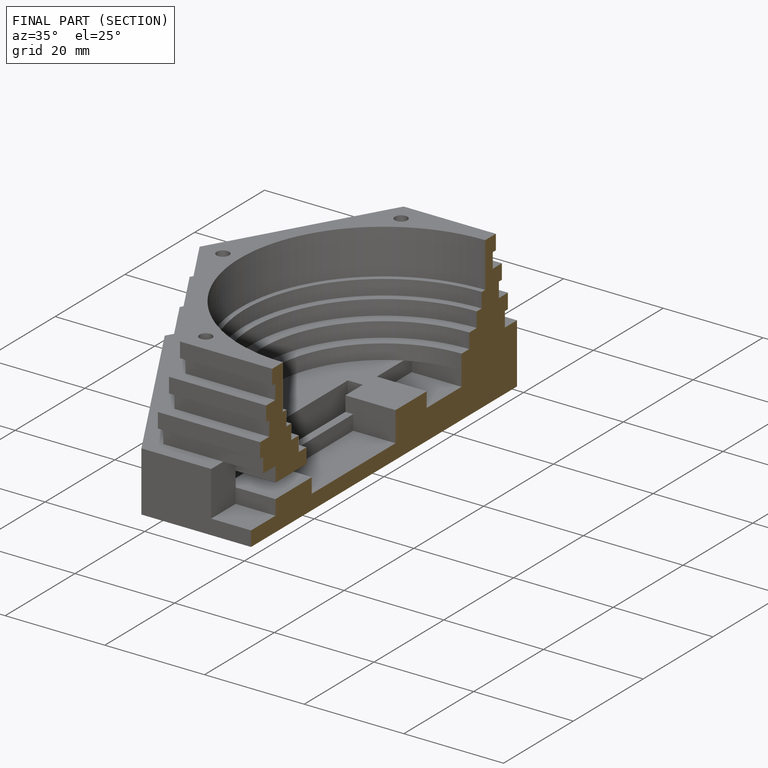
[diagram: finished part — half-section view (interior)]
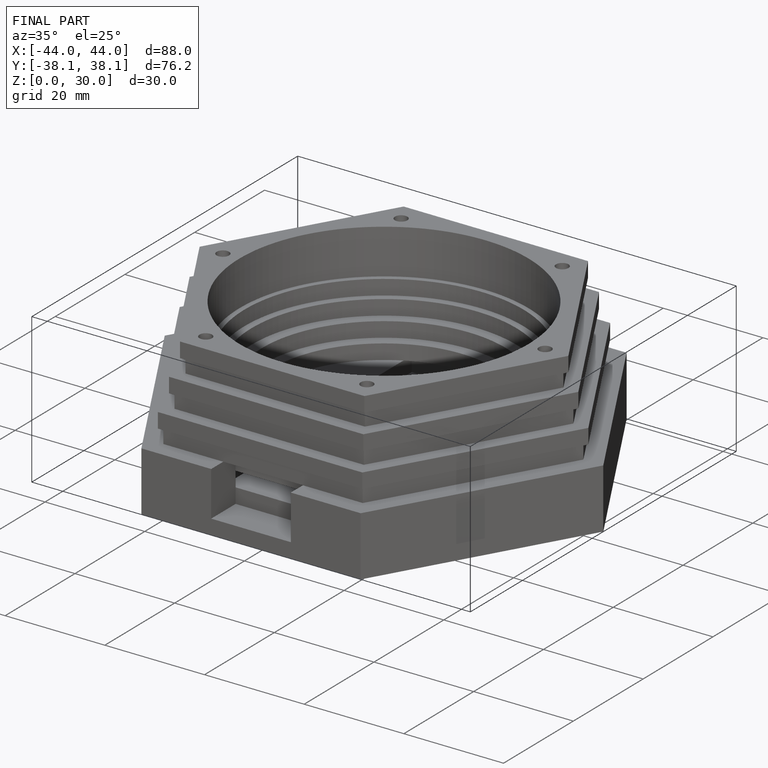
[diagram: finished part — iso view with bounding-box wireframe]
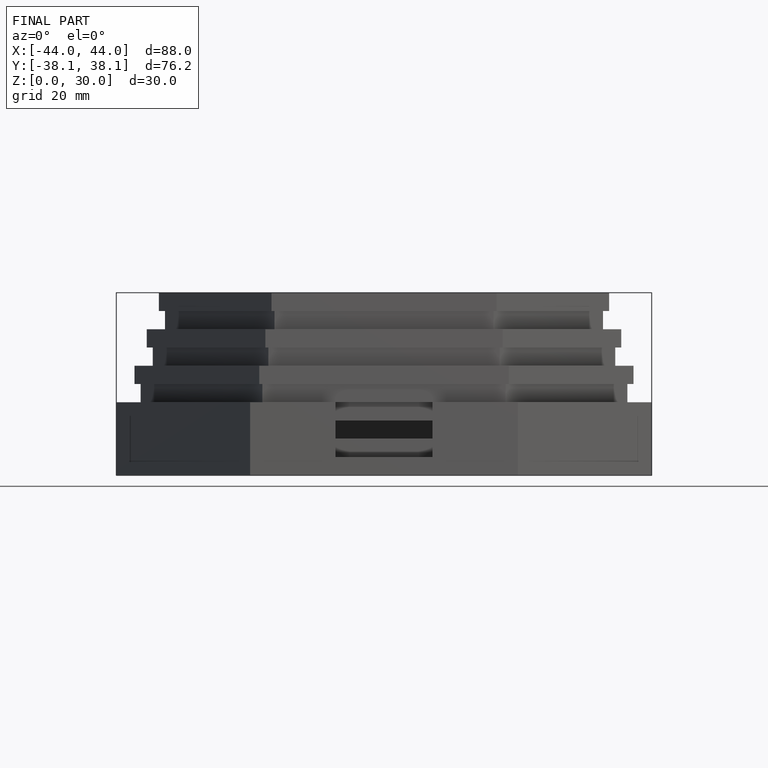
[diagram: finished part — front view with bounding-box wireframe]
